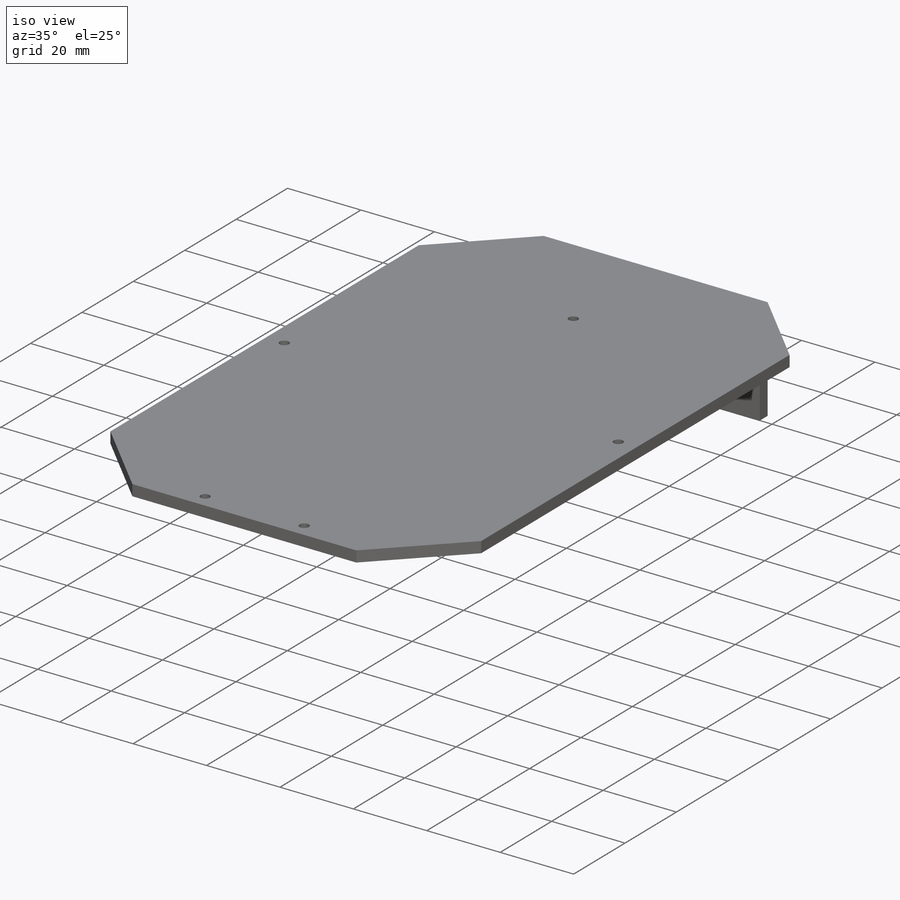
[diagram: iso view]
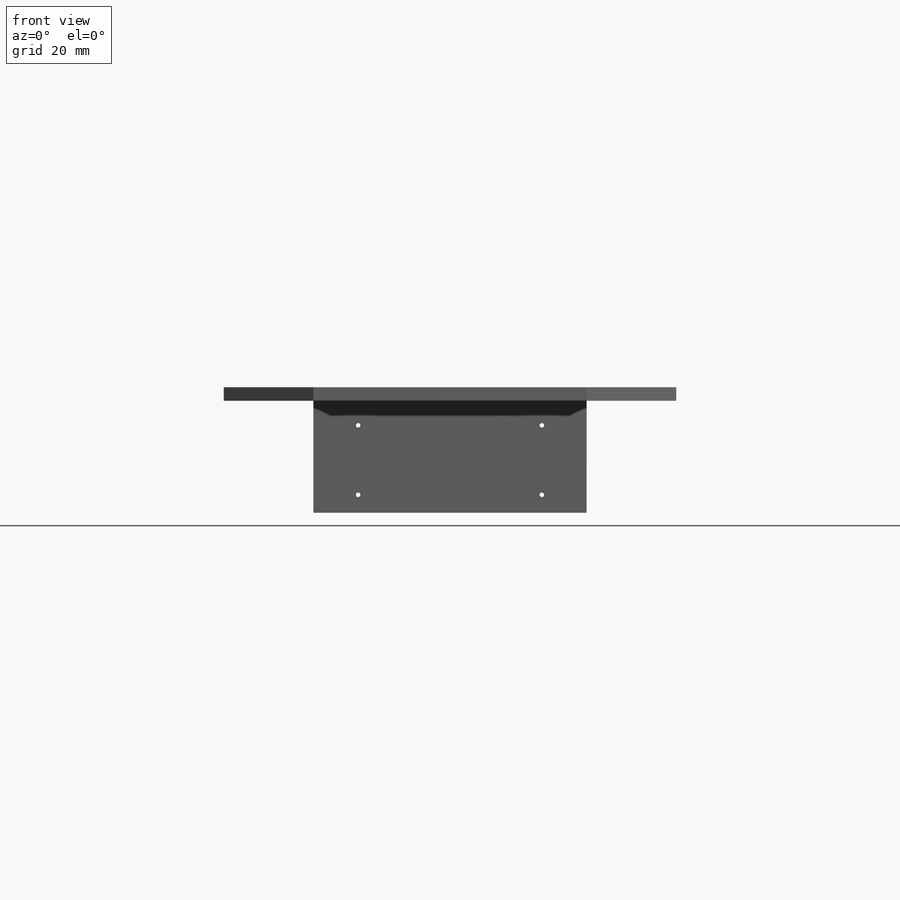
[diagram: front view]
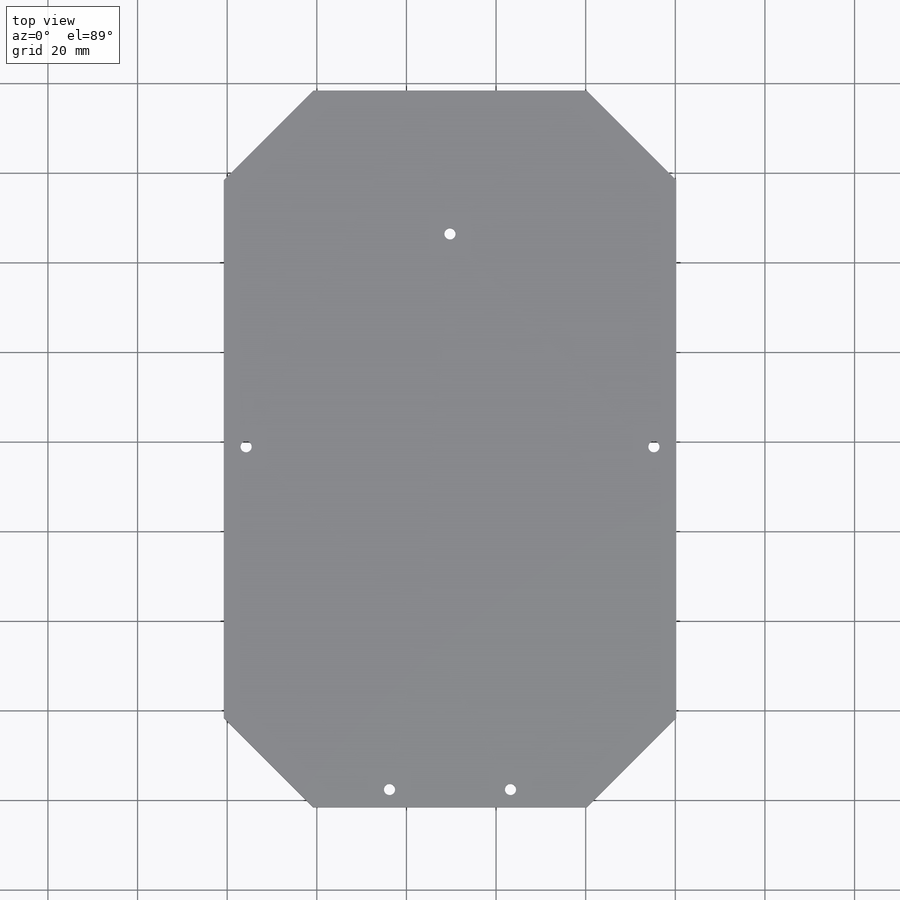
[diagram: top view]
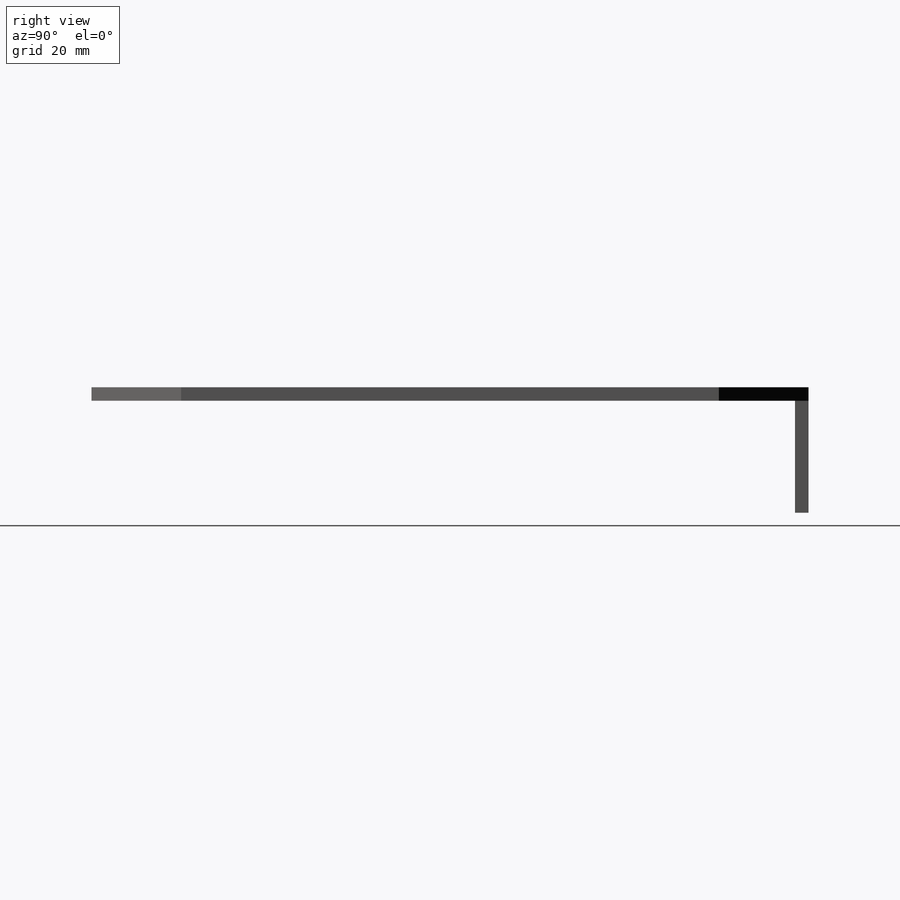
[diagram: right view]
SOLIDWORKS PART (.sldprt)
format: sldprt  version: not decoded by parser v0  size: 170,496 bytes
history: native  units: mm
features: sketch x4, plane x3, extrude x2, cut_extrude x2, material x1, chamfer x1 (+8 scaffold rows collapsed)
feature tree (21):
  scaffold x8  (default folders/planes/origin — collapsed)
  material  "Material <não especificado>"
  plane  "Plano frontal"
  plane  "Plano superior"
  plane  "Plano direito"
  sketch  "Esboço1"  dims[D1=160.0mm D2=101.0mm]
  extrude  "Ressalto-extrusão1"  Depth=3mm
  sketch  "Esboço2"  dims[c1.D1=2.5mm c1.D4=2.5mm c1.D6=~5.375763mm c1.D2=5.0mm c1.D3=79.5mm c1.D5=32.0mm c2.D6=4.0mm c2.D7=~4.824601mm c3.D7=90.0deg c4.D7=32.0mm c4.D8=18.5mm c5.D7=37.0mm]
  cut_extrude  "Corte-extrusão1"  Depth=140mm
  chamfer  "Chanfro1"  Distance=20mm Angle=45deg
  sketch  "Esboço3"  dims[D1=3.0mm D2=61.0mm]
  extrude  "Ressalto-extrusão2"  Depth=25mm
  sketch  "Esboço4"  dims[c1.D1=1.0mm c1.D2=1.0mm c1.D4=1.0mm c2.D2=0.0mm c2.D3=15.5mm c2.D4=10.0mm c2.D5=4.0mm c2.D6=4.0mm c2.D7=15.5mm]
  cut_extrude  "Corte-extrusão2"  Depth=25mm
decode coverage: 9 of 9 modeling features carry decoded parameters
note: ~ marks probable driven/reference dimensions
note: suppression state not decoded; provenance and decode notes live in map.json
